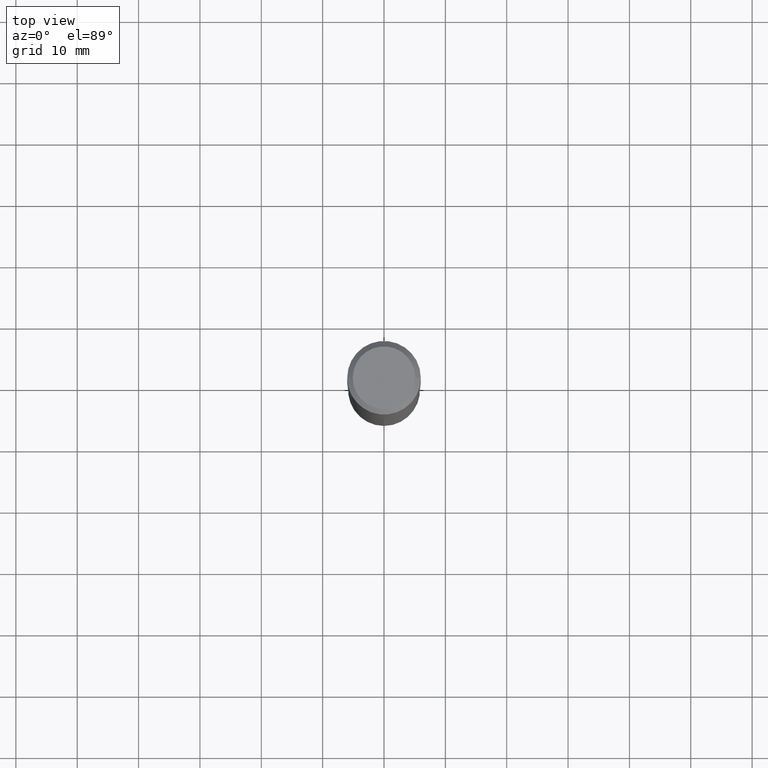
[diagram: clean part render]
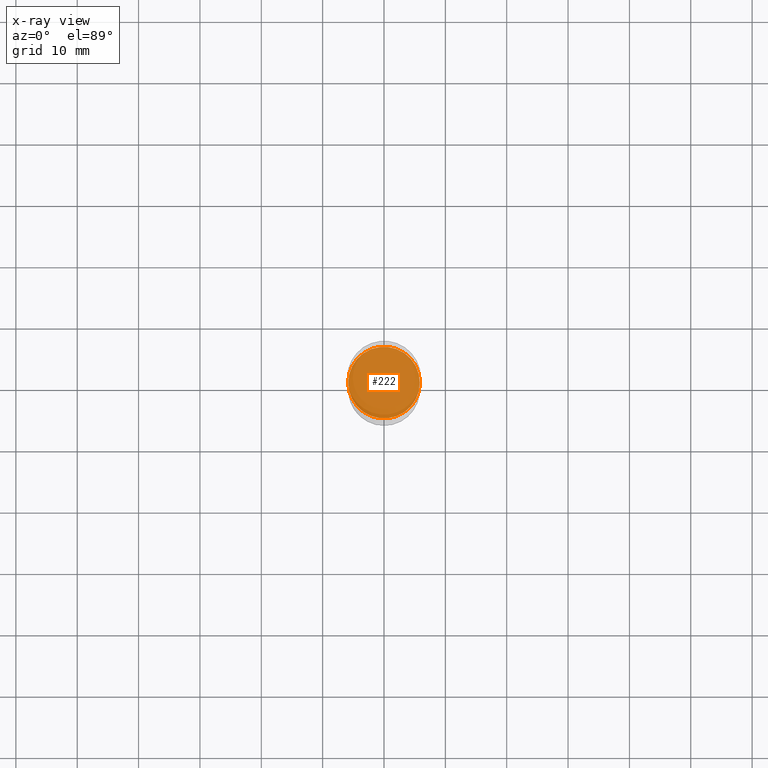
[diagram: x-ray — body ghosted, one internal face saturated and labeled with its STEP entity id]
A machine part, top view, then the same camera in x-ray: the body is ghosted and one INTERNAL B-rep face — a face not visible from any outside direction — is saturated and labeled: STEP entity #222.
In plain terms, the highlighted planar face has unit normal (-0, 0, 1).
Its self-contained STEP definition (entity closure, byte-faithful):
#4 = EDGE_LOOP ( 'NONE', ( #219, #205 ) ) ;
#15 = DIRECTION ( 'NONE',  ( -2.445468806185136597E-29, 3.491481338843145583E-15, 1.000000000000000000 ) ) ;
#36 = CARTESIAN_POINT ( 'NONE',  ( -0.2298000000000000043, -4.826208079846189020E-15, -1.850700000000000012 ) ) ;
#42 = AXIS2_PLACEMENT_3D ( 'NONE', #469, #243, #175 ) ;
#47 = DIRECTION ( 'NONE',  ( 1.000000000000000000, -6.982962677686267499E-15, 0.000000000000000000 ) ) ;
#56 = FACE_OUTER_BOUND ( 'NONE', #4, .T. ) ;
#96 = PLANE ( 'NONE',  #352 ) ;
#130 = CARTESIAN_POINT ( 'NONE',  ( 4.525829119606832626E-29, -6.461684513797009689E-15, -1.850700000000000012 ) ) ;
#175 = DIRECTION ( 'NONE',  ( 1.000000000000000000, -6.982962677686267499E-15, 0.000000000000000000 ) ) ;
#192 = CIRCLE ( 'NONE', #42, 0.2298000000000000043 ) ;
#205 = ORIENTED_EDGE ( 'NONE', *, *, #284, .F. ) ;
#219 = ORIENTED_EDGE ( 'NONE', *, *, #270, .F. ) ;
#222 = ADVANCED_FACE ( 'NONE', ( #56 ), #96, .F. ) ;
#243 = DIRECTION ( 'NONE',  ( -2.445468806185136597E-29, 3.491481338843145583E-15, 1.000000000000000000 ) ) ;
#270 = EDGE_CURVE ( 'NONE', #394, #400, #346, .T. ) ;
#282 = CARTESIAN_POINT ( 'NONE',  ( 4.525829119606832626E-29, -6.461684513797009689E-15, -1.850700000000000012 ) ) ;
#284 = EDGE_CURVE ( 'NONE', #400, #394, #192, .T. ) ;
#318 = DIRECTION ( 'NONE',  ( 1.000000000000000000, -6.982962677686265922E-15, 4.876176775795935793E-29 ) ) ;
#346 = CIRCLE ( 'NONE', #407, 0.2298000000000000043 ) ;
#352 = AXIS2_PLACEMENT_3D ( 'NONE', #282, #393, #318 ) ;
#393 = DIRECTION ( 'NONE',  ( -2.438088387897960049E-29, 3.491481338843145188E-15, 1.000000000000000000 ) ) ;
#394 = VERTEX_POINT ( 'NONE', #457 ) ;
#400 = VERTEX_POINT ( 'NONE', #36 ) ;
#407 = AXIS2_PLACEMENT_3D ( 'NONE', #130, #15, #47 ) ;
#457 = CARTESIAN_POINT ( 'NONE',  ( 0.2298000000000000043, -8.066369337129314145E-15, -1.850700000000000012 ) ) ;
#469 = CARTESIAN_POINT ( 'NONE',  ( 4.525829119606832626E-29, -6.461684513797009689E-15, -1.850700000000000012 ) ) ;